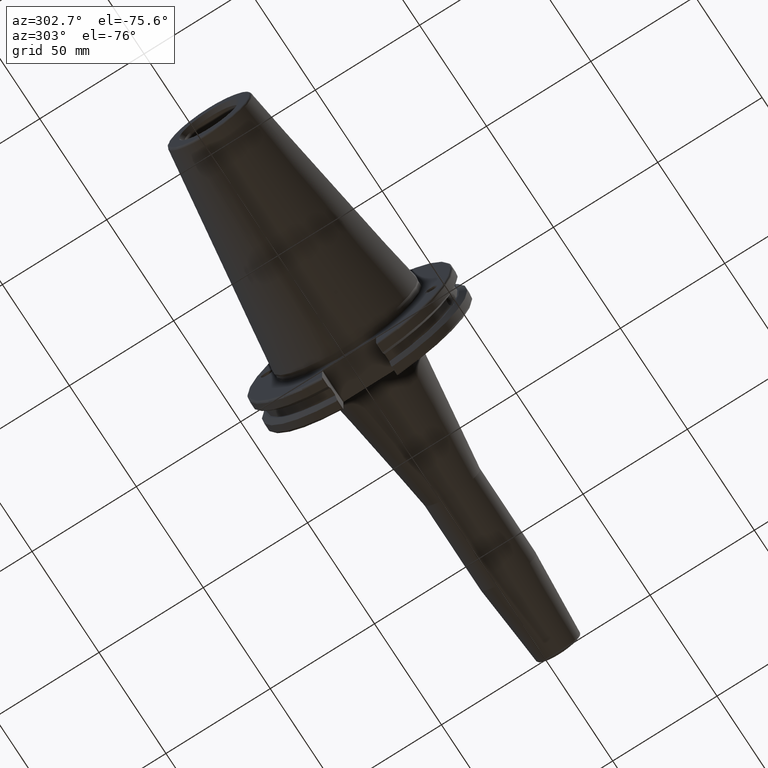
[diagram: clean part render]
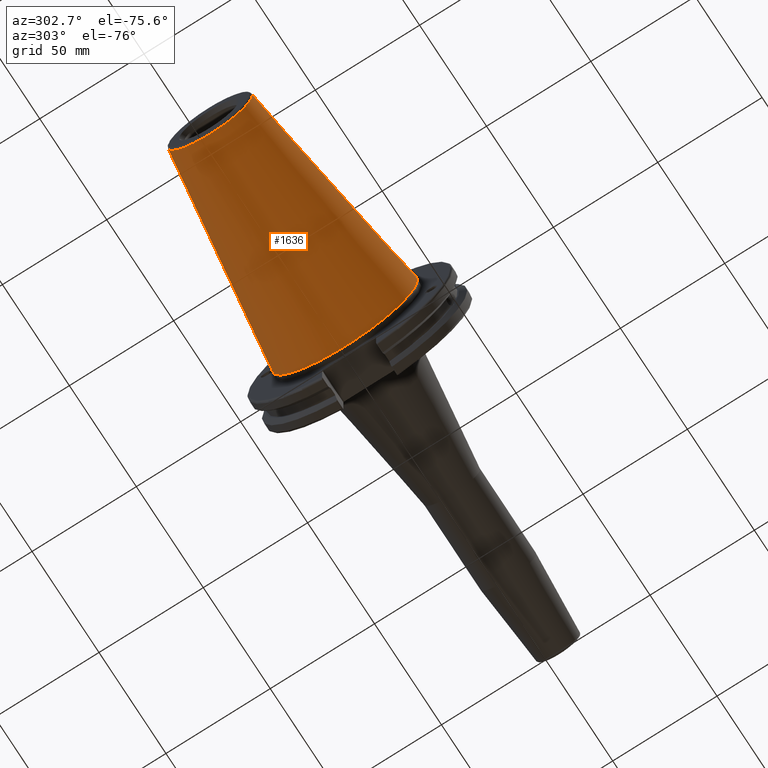
[diagram: same view with one face highlighted and labeled with its STEP entity id]
A machine part, auxiliary view. The second image highlights one B-rep face of the part: STEP entity #1636.
In plain terms, the highlighted conical surface has half-angle 8.297 deg.
Its self-contained STEP definition (entity closure, byte-faithful):
#237=FACE_OUTER_BOUND('',#348,.T.);
#348=EDGE_LOOP('',(#1423,#1424,#1425,#1426,#1427));
#458=LINE('',#3251,#557);
#557=VECTOR('',#2237,27.5166666666666);
#643=CIRCLE('',#1823,20.233121911427);
#644=CIRCLE('',#1824,20.233121911427);
#648=CIRCLE('',#1830,34.925);
#808=VERTEX_POINT('',#3238);
#809=VERTEX_POINT('',#3239);
#812=VERTEX_POINT('',#3249);
#1028=EDGE_CURVE('',#808,#809,#643,.T.);
#1029=EDGE_CURVE('',#809,#808,#644,.T.);
#1033=EDGE_CURVE('',#812,#812,#648,.T.);
#1034=EDGE_CURVE('',#812,#809,#458,.T.);
#1423=ORIENTED_EDGE('',*,*,#1033,.F.);
#1424=ORIENTED_EDGE('',*,*,#1034,.T.);
#1425=ORIENTED_EDGE('',*,*,#1028,.F.);
#1426=ORIENTED_EDGE('',*,*,#1029,.F.);
#1427=ORIENTED_EDGE('',*,*,#1034,.F.);
#1566=CONICAL_SURFACE('',#1829,27.5166666666666,0.14481249823894);
#1636=ADVANCED_FACE('',(#237),#1566,.T.);
#1823=AXIS2_PLACEMENT_3D('',#3240,#2221,#2222);
#1824=AXIS2_PLACEMENT_3D('',#3241,#2223,#2224);
#1829=AXIS2_PLACEMENT_3D('',#3248,#2233,#2234);
#1830=AXIS2_PLACEMENT_3D('',#3250,#2235,#2236);
#2221=DIRECTION('center_axis',(-1.,0.,0.));
#2222=DIRECTION('ref_axis',(0.,-1.,3.06161699786838E-17));
#2223=DIRECTION('center_axis',(-1.,0.,0.));
#2224=DIRECTION('ref_axis',(0.,-1.,3.06161699786838E-17));
#2233=DIRECTION('center_axis',(1.,0.,0.));
#2234=DIRECTION('ref_axis',(0.,1.,0.));
#2235=DIRECTION('center_axis',(1.,0.,0.));
#2236=DIRECTION('ref_axis',(0.,0.,-1.));
#2237=DIRECTION('',(-0.989532981063281,0.144306893071729,1.76724974695192E-17));
#3238=CARTESIAN_POINT('',(-100.744306893072,-2.47784279855872E-15,20.233121911427));
#3239=CARTESIAN_POINT('',(-100.744306893072,-20.233121911427,-2.47784279855872E-15));
#3240=CARTESIAN_POINT('Origin',(-100.744306893072,0.,-3.09730349819841E-15));
#3241=CARTESIAN_POINT('Origin',(-100.744306893072,0.,-3.09730349819841E-15));
#3248=CARTESIAN_POINT('Origin',(-50.8,0.,0.));
#3249=CARTESIAN_POINT('',(-8.88178419700125E-15,-34.925,-4.27707894602213E-15));
#3250=CARTESIAN_POINT('Origin',(0.,0.,0.));
#3251=CARTESIAN_POINT('',(-50.8,-27.5166666666666,-3.3698197756538E-15));